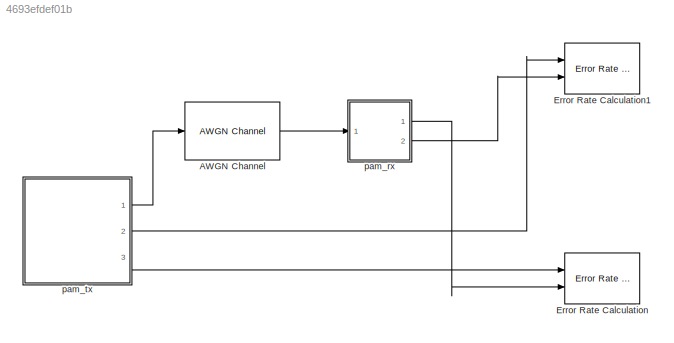
MODEL slx_4693efdef01b
KIND model
CONFIG AbsTol = auto
CONFIG EnableMultiTasking = off
CONFIG FixedStep = auto
CONFIG MaxStep = auto
CONFIG MinStep = auto
CONFIG RelTol = 1e-3
CONFIG SampleTimeConstraint = Unconstrained
CONFIG Solver = VariableStepAuto
CONFIG SolverName = VariableStepAuto
CONFIG StartTime = 0.0
CONFIG StopTime = 10.0
BLOCK [Reference] AWGN Channel  REF=commchan3/AWGN
Channel
  Ports = [1, 1]
  SourceBlock = commchan3/AWGN\nChannel
  SourceProductBaseCode = CM
  SourceProductName = Communications Toolbox
  SourceType = AWGN Channel
  UserDataPersistent = on
BLOCK [Reference] Error Rate Calculation  REF=commsink2/Error Rate
Calculation
  Ports = [2]
  SourceBlock = commsink2/Error Rate\nCalculation
  SourceProductBaseCode = CM
  SourceProductName = Communications Toolbox
  SourceType = Error Rate Calculation
BLOCK [Reference] Error Rate Calculation1  REF=commsink2/Error Rate
Calculation
  Ports = [2]
  SourceBlock = commsink2/Error Rate\nCalculation
  SourceProductBaseCode = CM
  SourceProductName = Communications Toolbox
  SourceType = Error Rate Calculation
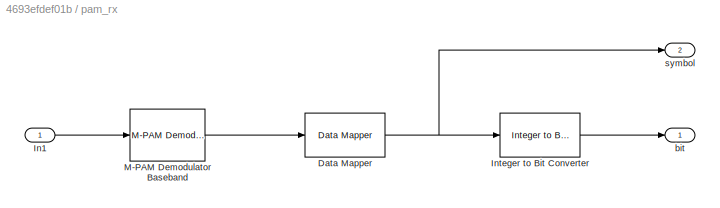
BLOCK [SubSystem] pam_rx 
  Ports = [1, 2]
  RequestExecContextInheritance = off
BLOCK [Reference] pam_rx /Data Mapper  REF=commutil2/Data Mapper
  Ports = [1, 1]
  SourceBlock = commutil2/Data Mapper
  SourceProductBaseCode = CM
  SourceProductName = Communications Toolbox
  SourceType = Data Mapper
BLOCK [Inport] pam_rx /In1
  IconDisplay = Port number
BLOCK [Reference] pam_rx /Integer to Bit Converter  REF=commutil2/Integer to Bit
Converter
  Ports = [1, 1]
  SourceBlock = commutil2/Integer to Bit\nConverter
  SourceProductBaseCode = CM
  SourceProductName = Communications Toolbox
  SourceType = Integer to Bit Converter
BLOCK [Reference] pam_rx /M-PAM Demodulator Baseband  REF=commdigbbndam3/M-PAM
Demodulator
Baseband
  Ports = [1, 1]
  SourceBlock = commdigbbndam3/M-PAM\nDemodulator\nBaseband
  SourceProductBaseCode = CM
  SourceProductName = Communications Toolbox
  SourceType = M-PAM Demodulator Baseband
BLOCK [Outport] pam_rx /bit 
  IconDisplay = Port number
BLOCK [Outport] pam_rx /symbol
  IconDisplay = Port number
  Port = 2
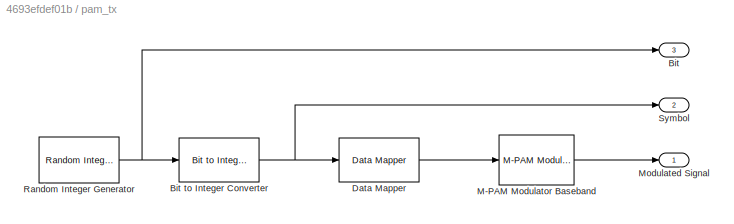
BLOCK [SubSystem] pam_tx
  Ports = [0, 3]
  RequestExecContextInheritance = off
BLOCK [Outport] pam_tx/Bit
  IconDisplay = Port number
  Port = 3
BLOCK [Reference] pam_tx/Bit to Integer Converter  REF=commutil2/Bit to Integer
Converter
  Ports = [1, 1]
  SourceBlock = commutil2/Bit to Integer\nConverter
  SourceProductBaseCode = CM
  SourceProductName = Communications Toolbox
  SourceType = Bit to Integer Converter
BLOCK [Reference] pam_tx/Data Mapper  REF=commutil2/Data Mapper
  Ports = [1, 1]
  SourceBlock = commutil2/Data Mapper
  SourceProductBaseCode = CM
  SourceProductName = Communications Toolbox
  SourceType = Data Mapper
BLOCK [Reference] pam_tx/M-PAM Modulator Baseband  REF=commdigbbndam3/M-PAM
Modulator
Baseband
  Ports = [1, 1]
  SourceBlock = commdigbbndam3/M-PAM\nModulator\nBaseband
  SourceProductBaseCode = CM
  SourceProductName = Communications Toolbox
  SourceType = M-PAM Modulator Baseband
BLOCK [Outport] pam_tx/Modulated Signal
  IconDisplay = Port number
BLOCK [Reference] pam_tx/Random Integer Generator  REF=commrandsrc3/Random Integer
Generator
  Ports = [0, 1]
  SourceBlock = commrandsrc3/Random Integer\nGenerator
  SourceProductBaseCode = CM
  SourceProductName = Communications Toolbox
  SourceType = Random Integer Generator
BLOCK [Outport] pam_tx/Symbol
  IconDisplay = Port number
  Port = 2
LINE AWGN Channel:1 -> pam_rx :1
NET pam_rx /Data Mapper:1 -> pam_rx /Integer to Bit Converter:1, pam_rx /symbol:1
LINE pam_rx /In1:1 -> pam_rx /M-PAM Demodulator Baseband:1
LINE pam_rx /Integer to Bit Converter:1 -> pam_rx /bit :1
LINE pam_rx /M-PAM Demodulator Baseband:1 -> pam_rx /Data Mapper:1
LINE pam_rx :1 -> Error Rate Calculation:2
LINE pam_rx :2 -> Error Rate Calculation1:2
NET pam_tx/Bit to Integer Converter:1 -> pam_tx/Data Mapper:1, pam_tx/Symbol:1
LINE pam_tx/Data Mapper:1 -> pam_tx/M-PAM Modulator Baseband:1
LINE pam_tx/M-PAM Modulator Baseband:1 -> pam_tx/Modulated Signal:1
NET pam_tx/Random Integer Generator:1 -> pam_tx/Bit to Integer Converter:1, pam_tx/Bit:1
LINE pam_tx:1 -> AWGN Channel:1
LINE pam_tx:2 -> Error Rate Calculation1:1
LINE pam_tx:3 -> Error Rate Calculation:1
note: NET lines group one-source signal fan-out (src -> all destinations, sorted); 1:1 wires keep LINE
